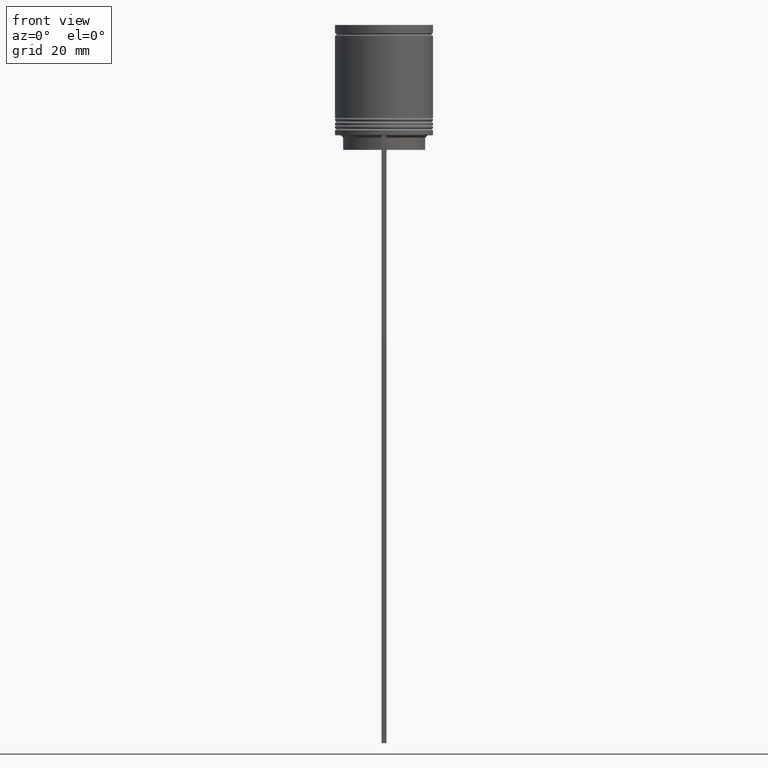
[diagram: clean part render]
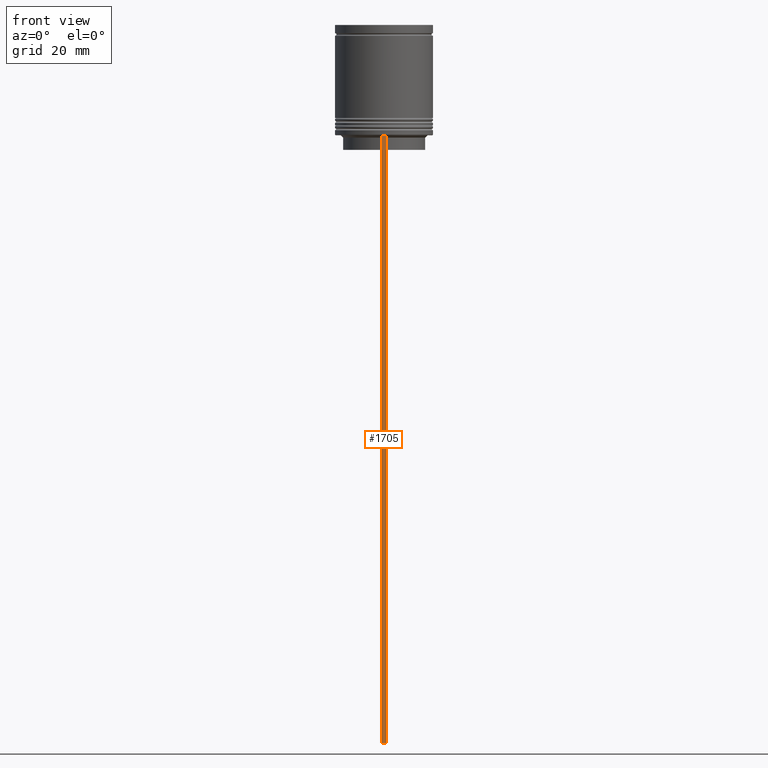
[diagram: same view with one face highlighted and labeled with its STEP entity id]
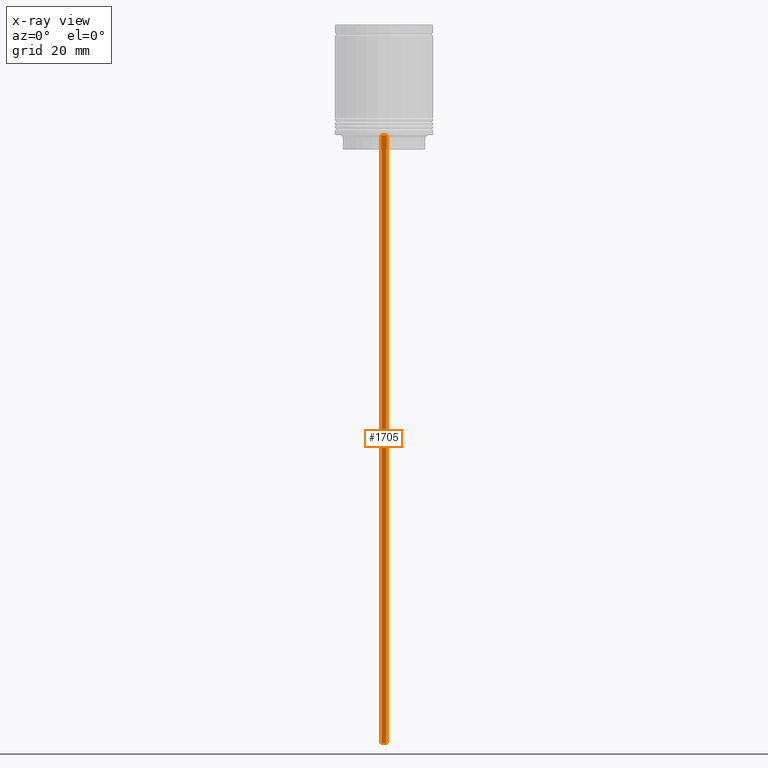
[diagram: x-ray of the same camera — body ghosted, the highlighted face saturated]
A machine part, front view. The second image highlights one B-rep face of the part: STEP entity #1705.
The next image is the same camera in x-ray: the body ghosted, the highlighted face saturated — about 0% of this face is hidden behind the body in this view.
In plain terms, the highlighted planar face has unit normal (0, -1, -0).
Its self-contained STEP definition (entity closure, byte-faithful):
#107 = VECTOR ( 'NONE', #622, 1000.000000000000000 ) ;
#126 = VERTEX_POINT ( 'NONE', #1514 ) ;
#163 = DIRECTION ( 'NONE',  ( 1.000000000000000000, 0.000000000000000000, 0.000000000000000000 ) ) ;
#182 = VECTOR ( 'NONE', #378, 1000.000000000000000 ) ;
#352 = ORIENTED_EDGE ( 'NONE', *, *, #1277, .F. ) ;
#364 = LINE ( 'NONE', #1350, #182 ) ;
#378 = DIRECTION ( 'NONE',  ( -1.000000000000000000, 0.000000000000000000, 0.000000000000000000 ) ) ;
#390 = DIRECTION ( 'NONE',  ( 0.000000000000000000, 0.000000000000000000, -1.000000000000000000 ) ) ;
#448 = AXIS2_PLACEMENT_3D ( 'NONE', #743, #734, #603 ) ;
#516 = EDGE_CURVE ( 'NONE', #1757, #704, #1444, .T. ) ;
#518 = EDGE_LOOP ( 'NONE', ( #352, #523, #1639, #2072 ) ) ;
#523 = ORIENTED_EDGE ( 'NONE', *, *, #516, .T. ) ;
#600 = VERTEX_POINT ( 'NONE', #828 ) ;
#603 = DIRECTION ( 'NONE',  ( 0.000000000000000000, 0.000000000000000000, -1.000000000000000000 ) ) ;
#622 = DIRECTION ( 'NONE',  ( 0.000000000000000000, 0.000000000000000000, -1.000000000000000000 ) ) ;
#687 = CARTESIAN_POINT ( 'NONE',  ( -0.5000000000000000000, -10.00000000000000178, -146.5000000000000000 ) ) ;
#704 = VERTEX_POINT ( 'NONE', #687 ) ;
#734 = DIRECTION ( 'NONE',  ( 0.000000000000000000, -1.000000000000000000, -0.000000000000000000 ) ) ;
#743 = CARTESIAN_POINT ( 'NONE',  ( 0.5000000000000000000, -10.00000000000000178, -2.475015605499213844 ) ) ;
#752 = CARTESIAN_POINT ( 'NONE',  ( -0.5000000000000000000, -10.00000000000000178, -22.50000000000000000 ) ) ;
#828 = CARTESIAN_POINT ( 'NONE',  ( 0.5000000000000000000, -10.00000000000000178, -146.5000000000000000 ) ) ;
#908 = CARTESIAN_POINT ( 'NONE',  ( 0.5000000000000000000, -10.00000000000000178, -22.50000000000000000 ) ) ;
#1037 = LINE ( 'NONE', #1386, #1777 ) ;
#1090 = EDGE_CURVE ( 'NONE', #126, #600, #1037, .T. ) ;
#1277 = EDGE_CURVE ( 'NONE', #1757, #126, #1621, .T. ) ;
#1296 = VECTOR ( 'NONE', #163, 1000.000000000000000 ) ;
#1350 = CARTESIAN_POINT ( 'NONE',  ( 0.5000000000000000000, -10.00000000000000178, -146.5000000000000000 ) ) ;
#1386 = CARTESIAN_POINT ( 'NONE',  ( 0.5000000000000000000, -10.00000000000000178, -2.475015605499213844 ) ) ;
#1444 = LINE ( 'NONE', #2073, #107 ) ;
#1514 = CARTESIAN_POINT ( 'NONE',  ( 0.5000000000000000000, -10.00000000000000178, -22.50000000000000000 ) ) ;
#1552 = PLANE ( 'NONE',  #448 ) ;
#1621 = LINE ( 'NONE', #908, #1296 ) ;
#1639 = ORIENTED_EDGE ( 'NONE', *, *, #1962, .F. ) ;
#1705 = ADVANCED_FACE ( 'NONE', ( #1732 ), #1552, .T. ) ;
#1732 = FACE_OUTER_BOUND ( 'NONE', #518, .T. ) ;
#1757 = VERTEX_POINT ( 'NONE', #752 ) ;
#1777 = VECTOR ( 'NONE', #390, 1000.000000000000000 ) ;
#1962 = EDGE_CURVE ( 'NONE', #600, #704, #364, .T. ) ;
#2072 = ORIENTED_EDGE ( 'NONE', *, *, #1090, .F. ) ;
#2073 = CARTESIAN_POINT ( 'NONE',  ( -0.5000000000000000000, -10.00000000000000178, -2.475015605499213844 ) ) ;